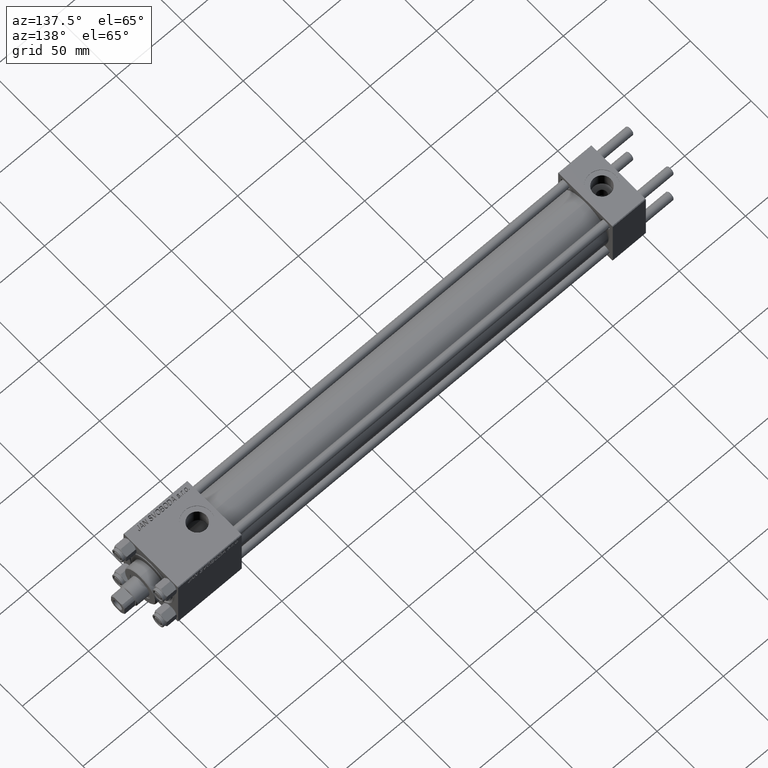
[diagram: clean part render]
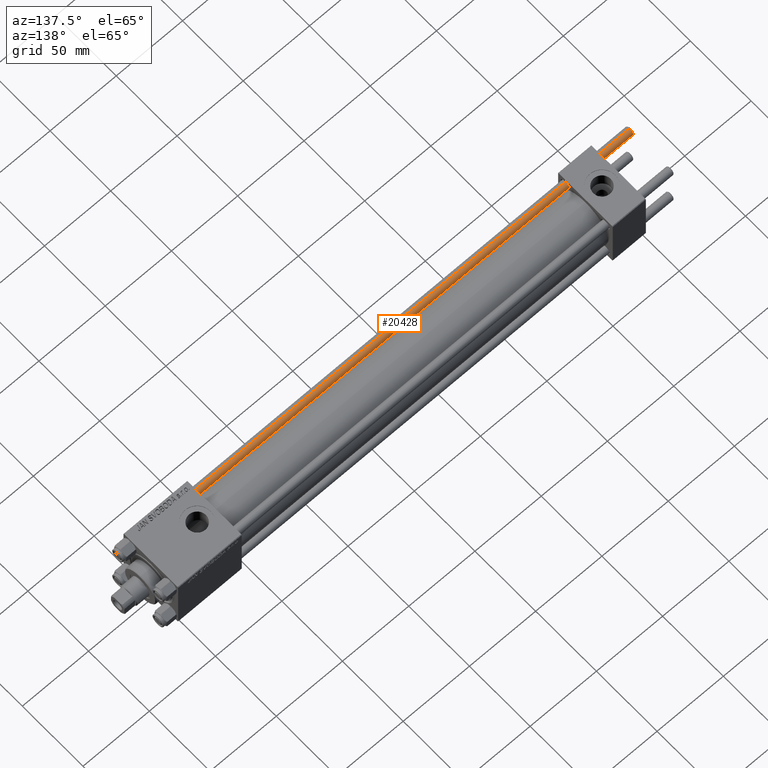
[diagram: same view with one face highlighted and labeled with its STEP entity id]
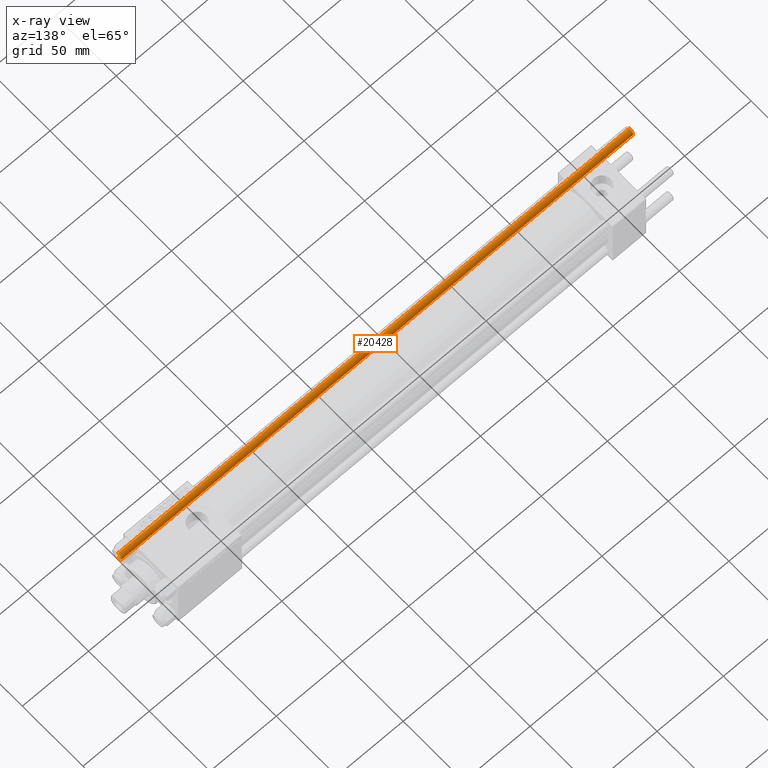
[diagram: x-ray of the same camera — body ghosted, the highlighted face saturated]
A machine part, auxiliary view. The second image highlights one B-rep face of the part: STEP entity #20428.
The next image is the same camera in x-ray: the body ghosted, the highlighted face saturated — about 0% of this face is hidden behind the body in this view.
In plain terms, the highlighted cylindrical surface (edge-blend (fillet) strip) has radius 3 mm, axis along (1, -0, 0).
Its self-contained STEP definition (entity closure, byte-faithful):
#866 = VERTEX_POINT ( 'NONE', #2530 ) ;
#2530 = CARTESIAN_POINT ( 'NONE',  ( -3.000000000000000444, 0.000000000000000000, 0.5000000000000004441 ) ) ;
#6368 = VERTEX_POINT ( 'NONE', #43281 ) ;
#8088 = ORIENTED_EDGE ( 'NONE', *, *, #9689, .T. ) ;
#8347 = CARTESIAN_POINT ( 'NONE',  ( 0.000000000000000000, 0.000000000000000000, 387.0000000000000000 ) ) ;
#8380 = VERTEX_POINT ( 'NONE', #19470 ) ;
#9301 = DIRECTION ( 'NONE',  ( -0.000000000000000000, -0.000000000000000000, -1.000000000000000000 ) ) ;
#9689 = EDGE_CURVE ( 'NONE', #36913, #866, #40563, .T. ) ;
#10619 = CARTESIAN_POINT ( 'NONE',  ( 0.000000000000000000, 0.000000000000000000, 386.5000000000000568 ) ) ;
#12139 = CARTESIAN_POINT ( 'NONE',  ( -3.000000000000000444, 0.000000000000000000, 386.5000000000000568 ) ) ;
#12633 = DIRECTION ( 'NONE',  ( -1.000000000000000000, 0.000000000000000000, 0.000000000000000000 ) ) ;
#13075 = DIRECTION ( 'NONE',  ( 1.000000000000000000, 0.000000000000000000, 0.000000000000000000 ) ) ;
#13334 = CARTESIAN_POINT ( 'NONE',  ( -3.000000000000000444, 0.000000000000000000, 387.0000000000000000 ) ) ;
#13997 = ORIENTED_EDGE ( 'NONE', *, *, #21082, .T. ) ;
#14673 = DIRECTION ( 'NONE',  ( 1.000000000000000000, 0.000000000000000000, 0.000000000000000000 ) ) ;
#18281 = CIRCLE ( 'NONE', #40805, 3.000000000000000444 ) ;
#19214 = CARTESIAN_POINT ( 'NONE',  ( 0.000000000000000000, 0.000000000000000000, 0.5000000000000004441 ) ) ;
#19470 = CARTESIAN_POINT ( 'NONE',  ( 3.000000000000000444, 3.673940397442060361E-16, 386.5000000000000568 ) ) ;
#20428 = ADVANCED_FACE ( 'NONE', ( #35332 ), #32051, .T. ) ;
#21082 = EDGE_CURVE ( 'NONE', #866, #6368, #18281, .T. ) ;
#21496 = AXIS2_PLACEMENT_3D ( 'NONE', #8347, #23482, #12633 ) ;
#21634 = CIRCLE ( 'NONE', #44161, 3.000000000000000444 ) ;
#23077 = EDGE_CURVE ( 'NONE', #8380, #6368, #31031, .T. ) ;
#23482 = DIRECTION ( 'NONE',  ( -0.000000000000000000, -0.000000000000000000, -1.000000000000000000 ) ) ;
#24802 = EDGE_CURVE ( 'NONE', #8380, #36913, #21634, .T. ) ;
#26016 = DIRECTION ( 'NONE',  ( 0.000000000000000000, 0.000000000000000000, -1.000000000000000000 ) ) ;
#27238 = CARTESIAN_POINT ( 'NONE',  ( 3.000000000000000444, 3.673940397442060361E-16, 387.0000000000000000 ) ) ;
#28836 = VECTOR ( 'NONE', #42610, 1000.000000000000000 ) ;
#29225 = VECTOR ( 'NONE', #9301, 1000.000000000000000 ) ;
#31031 = LINE ( 'NONE', #27238, #28836 ) ;
#32051 = CYLINDRICAL_SURFACE ( 'NONE', #21496, 3.000000000000000444 ) ;
#35332 = FACE_OUTER_BOUND ( 'NONE', #45334, .T. ) ;
#36913 = VERTEX_POINT ( 'NONE', #12139 ) ;
#40563 = LINE ( 'NONE', #13334, #29225 ) ;
#40805 = AXIS2_PLACEMENT_3D ( 'NONE', #19214, #42156, #14673 ) ;
#40981 = ORIENTED_EDGE ( 'NONE', *, *, #24802, .T. ) ;
#42156 = DIRECTION ( 'NONE',  ( -0.000000000000000000, -0.000000000000000000, 1.000000000000000000 ) ) ;
#42610 = DIRECTION ( 'NONE',  ( -0.000000000000000000, -0.000000000000000000, -1.000000000000000000 ) ) ;
#43281 = CARTESIAN_POINT ( 'NONE',  ( 3.000000000000000444, 3.673940397442060361E-16, 0.5000000000000004441 ) ) ;
#43880 = ORIENTED_EDGE ( 'NONE', *, *, #23077, .F. ) ;
#44161 = AXIS2_PLACEMENT_3D ( 'NONE', #10619, #26016, #13075 ) ;
#45334 = EDGE_LOOP ( 'NONE', ( #43880, #40981, #8088, #13997 ) ) ;